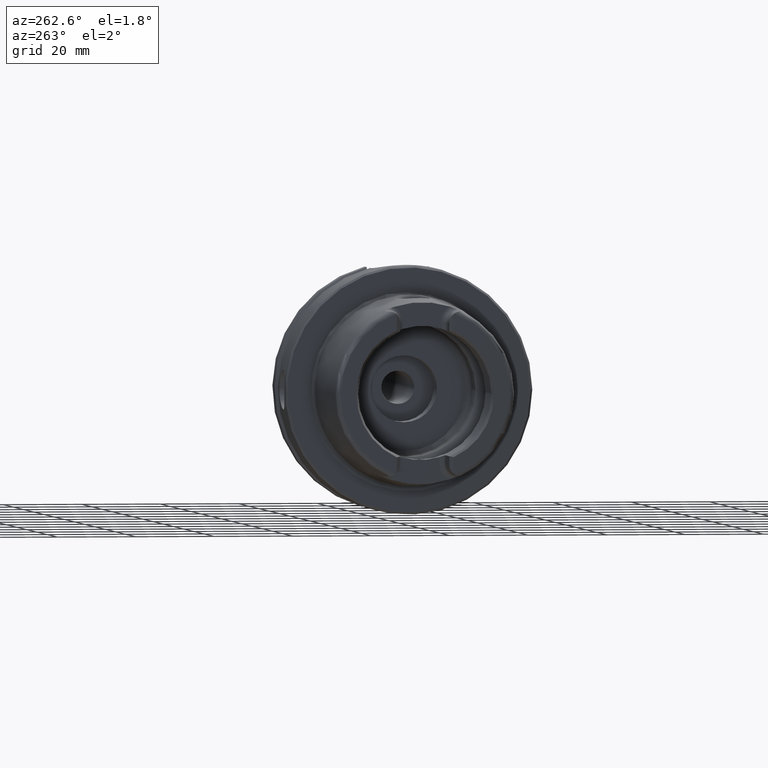
[diagram: clean part render]
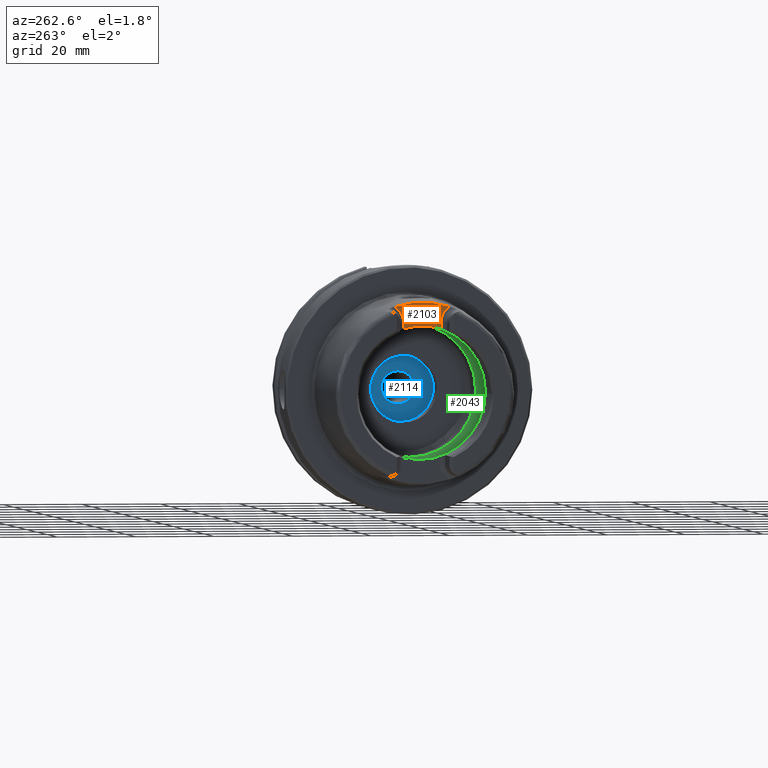
[diagram: same view with three faces highlighted in distinct colors, each labeled with its STEP entity id]
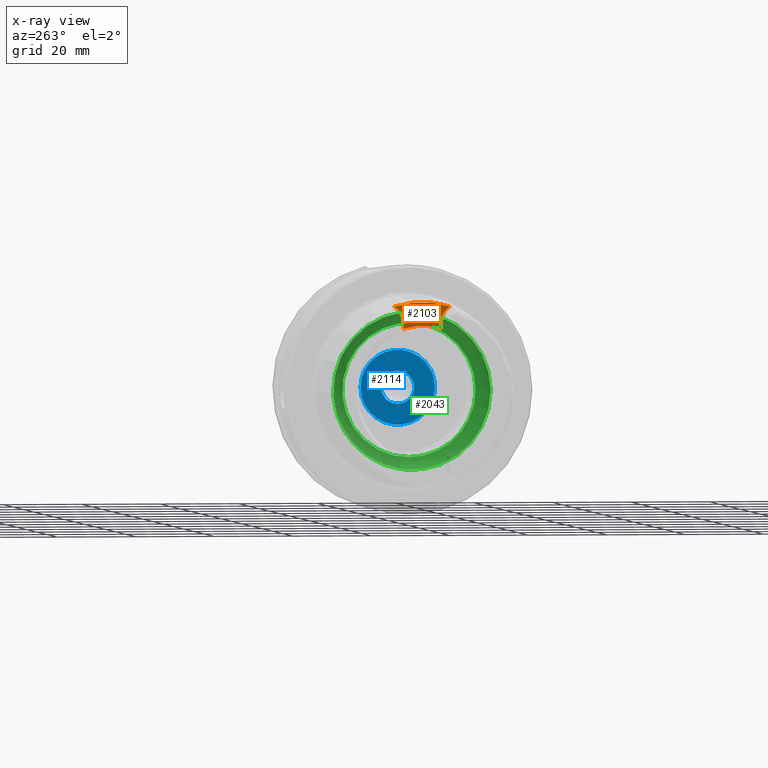
[diagram: x-ray of the same camera — body ghosted, the three highlighted faces saturated]
A machine part, auxiliary view with three faces highlighted in distinct colors.
The next image is the same camera in x-ray (body ghosted, the three faces saturated) — at least one of them is partly hidden behind the body in this view.
Their STEP definitions:

[orange] entity #2103 — the highlighted planar face has unit normal (-1, 0, 0).
#136=PLANE('',#2352);
#310=FACE_OUTER_BOUND('',#440,.T.);
#440=EDGE_LOOP('',(#1865,#1866,#1867,#1868,#1869,#1870));
#564=LINE('',#4351,#674);
#565=LINE('',#4380,#675);
#674=VECTOR('',#2858,10.);
#675=VECTOR('',#2871,10.);
#729=CIRCLE('',#2232,23.0180260521042);
#774=CIRCLE('',#2328,4.38);
#776=CIRCLE('',#2331,4.38);
#786=CIRCLE('',#2353,17.);
#904=VERTEX_POINT('',#3542);
#905=VERTEX_POINT('',#3557);
#998=VERTEX_POINT('',#4348);
#999=VERTEX_POINT('',#4350);
#1000=VERTEX_POINT('',#4365);
#1001=VERTEX_POINT('',#4369);
#1138=EDGE_CURVE('',#904,#905,#729,.T.);
#1285=EDGE_CURVE('',#998,#999,#564,.T.);
#1287=EDGE_CURVE('',#905,#998,#774,.T.);
#1289=EDGE_CURVE('',#1000,#904,#776,.T.);
#1291=EDGE_CURVE('',#1001,#1000,#565,.T.);
#1307=EDGE_CURVE('',#999,#1001,#786,.T.);
#1865=ORIENTED_EDGE('',*,*,#1287,.F.);
#1866=ORIENTED_EDGE('',*,*,#1138,.F.);
#1867=ORIENTED_EDGE('',*,*,#1289,.F.);
#1868=ORIENTED_EDGE('',*,*,#1291,.F.);
#1869=ORIENTED_EDGE('',*,*,#1307,.F.);
#1870=ORIENTED_EDGE('',*,*,#1285,.F.);
#2103=ADVANCED_FACE('',(#310),#136,.T.);
#2232=AXIS2_PLACEMENT_3D('',#3558,#2616,#2617);
#2328=AXIS2_PLACEMENT_3D('',#4363,#2861,#2862);
#2331=AXIS2_PLACEMENT_3D('',#4367,#2867,#2868);
#2352=AXIS2_PLACEMENT_3D('',#4428,#2914,#2915);
#2353=AXIS2_PLACEMENT_3D('',#4429,#2916,#2917);
#2616=DIRECTION('center_axis',(1.,0.,0.));
#2617=DIRECTION('ref_axis',(0.,1.,0.));
#2858=DIRECTION('',(0.,-1.58830189502884E-16,-1.));
#2861=DIRECTION('center_axis',(-1.,0.,0.));
#2862=DIRECTION('ref_axis',(0.,0.601141749549969,0.799142413433302));
#2867=DIRECTION('center_axis',(-1.,0.,0.));
#2868=DIRECTION('ref_axis',(0.,-0.601141749549969,0.799142413433301));
#2871=DIRECTION('',(0.,-1.58830189502884E-16,1.));
#2914=DIRECTION('center_axis',(-1.,0.,0.));
#2915=DIRECTION('ref_axis',(0.,0.,1.));
#2916=DIRECTION('center_axis',(-1.,0.,0.));
#2917=DIRECTION('ref_axis',(0.,1.,0.));
#3542=CARTESIAN_POINT('',(-26.,7.14127219004964,21.8822246319466));
#3557=CARTESIAN_POINT('',(-26.,-7.14127219004964,21.8822246319466));
#3558=CARTESIAN_POINT('Origin',(-26.,0.,0.));
#4348=CARTESIAN_POINT('',(-26.,-4.77,17.99));
#4350=CARTESIAN_POINT('',(-26.,-4.77,16.3170800083839));
#4351=CARTESIAN_POINT('',(-26.,-4.77,14.75));
#4363=CARTESIAN_POINT('Origin',(-26.,-9.15,17.99));
#4365=CARTESIAN_POINT('',(-26.,4.77,17.99));
#4367=CARTESIAN_POINT('Origin',(-26.,9.15,17.99));
#4369=CARTESIAN_POINT('',(-26.,4.77,16.3170800083839));
#4380=CARTESIAN_POINT('',(-26.,4.77,18.245));
#4428=CARTESIAN_POINT('Origin',(-26.,-2.22044604925031E-15,18.5));
#4429=CARTESIAN_POINT('Origin',(-26.,0.,0.));

[blue] entity #2114 — the highlighted planar face has unit normal (1, 0, 0).
#98=FACE_BOUND('',#452,.T.);
#140=PLANE('',#2378);
#321=FACE_OUTER_BOUND('',#451,.T.);
#451=EDGE_LOOP('',(#1931));
#452=EDGE_LOOP('',(#1932));
#712=CIRCLE('',#2191,4.2);
#801=CIRCLE('',#2379,9.5);
#850=VERTEX_POINT('',#3127);
#1013=VERTEX_POINT('',#4464);
#1069=EDGE_CURVE('',#850,#850,#712,.T.);
#1324=EDGE_CURVE('',#1013,#1013,#801,.T.);
#1931=ORIENTED_EDGE('',*,*,#1324,.T.);
#1932=ORIENTED_EDGE('',*,*,#1069,.T.);
#2114=ADVANCED_FACE('',(#321,#98),#140,.F.);
#2191=AXIS2_PLACEMENT_3D('',#3128,#2508,#2509);
#2378=AXIS2_PLACEMENT_3D('',#4463,#2968,#2969);
#2379=AXIS2_PLACEMENT_3D('',#4465,#2970,#2971);
#2508=DIRECTION('center_axis',(1.,0.,0.));
#2509=DIRECTION('ref_axis',(0.,0.,1.));
#2968=DIRECTION('center_axis',(1.,0.,0.));
#2969=DIRECTION('ref_axis',(0.,0.,-1.));
#2970=DIRECTION('center_axis',(-1.,0.,0.));
#2971=DIRECTION('ref_axis',(0.,0.,1.));
#3127=CARTESIAN_POINT('',(22.,-5.14351655641888E-16,-4.2));
#3128=CARTESIAN_POINT('Origin',(22.,0.,0.));
#4463=CARTESIAN_POINT('Origin',(22.,9.5,0.));
#4464=CARTESIAN_POINT('',(22.,-9.5,1.16341445918999E-15));
#4465=CARTESIAN_POINT('Origin',(22.,0.,0.));

[green] entity #2043 — the highlighted toroidal blend (fillet) surface has major radius 12 mm and minor (blend) radius 8 mm.
#49=B_SPLINE_CURVE_WITH_KNOTS('',3,(#3600,#3601,#3602,#3603,#3604,#3605,
#3606,#3607,#3608,#3609,#3610,#3611),.UNSPECIFIED.,.F.,.F.,(4,2,2,2,2,4),
(-0.560647090003115,-0.432465132423936,-0.371738630353782,-0.32053783623797,
-0.287500355516274,-0.280385270121909),.UNSPECIFIED.);
#51=B_SPLINE_CURVE_WITH_KNOTS('',3,(#3644,#3645,#3646,#3647,#3648,#3649,
#3650,#3651,#3652,#3653),.UNSPECIFIED.,.F.,.F.,(4,2,2,2,4),(-0.280385270121909,
-0.256917987419631,-0.21744735037608,-0.138661357565599,0.),
 .UNSPECIFIED.);
#54=B_SPLINE_CURVE_WITH_KNOTS('',3,(#3769,#3770,#3771,#3772,#3773,#3774,
#3775,#3776,#3777,#3778,#3779,#3780),.UNSPECIFIED.,.F.,.F.,(4,2,2,2,2,4),
(-0.560647090003256,-0.432465132424011,-0.371738630353825,-0.32053783623799,
-0.287500355516289,-0.280385270121924),.UNSPECIFIED.);
#56=B_SPLINE_CURVE_WITH_KNOTS('',3,(#3813,#3814,#3815,#3816,#3817,#3818,
#3819,#3820,#3821,#3822),.UNSPECIFIED.,.F.,.F.,(4,2,2,2,4),(-0.280385270121924,
-0.256917987419636,-0.217447350376074,-0.138661357565593,0.),
 .UNSPECIFIED.);
#147=TOROIDAL_SURFACE('',#2242,12.,8.);
#250=FACE_OUTER_BOUND('',#379,.T.);
#379=EDGE_LOOP('',(#1545,#1546,#1547,#1548,#1549,#1550,#1551,#1552,#1553,
#1554,#1555));
#731=CIRCLE('',#2237,20.);
#734=CIRCLE('',#2240,20.);
#735=CIRCLE('',#2241,20.);
#736=CIRCLE('',#2243,17.);
#737=CIRCLE('',#2244,17.);
#738=CIRCLE('',#2245,8.);
#907=VERTEX_POINT('',#3597);
#908=VERTEX_POINT('',#3599);
#909=VERTEX_POINT('',#3612);
#912=VERTEX_POINT('',#3767);
#913=VERTEX_POINT('',#3768);
#914=VERTEX_POINT('',#3781);
#915=VERTEX_POINT('',#3825);
#918=VERTEX_POINT('',#3835);
#919=VERTEX_POINT('',#3836);
#1143=EDGE_CURVE('',#908,#907,#49,.T.);
#1145=EDGE_CURVE('',#907,#909,#51,.T.);
#1149=EDGE_CURVE('',#912,#913,#54,.T.);
#1151=EDGE_CURVE('',#913,#914,#56,.T.);
#1153=EDGE_CURVE('',#915,#912,#731,.T.);
#1157=EDGE_CURVE('',#909,#915,#734,.T.);
#1158=EDGE_CURVE('',#914,#908,#735,.T.);
#1159=EDGE_CURVE('',#918,#919,#736,.T.);
#1160=EDGE_CURVE('',#919,#918,#737,.T.);
#1161=EDGE_CURVE('',#919,#907,#738,.T.);
#1545=ORIENTED_EDGE('',*,*,#1159,.F.);
#1546=ORIENTED_EDGE('',*,*,#1160,.F.);
#1547=ORIENTED_EDGE('',*,*,#1161,.T.);
#1548=ORIENTED_EDGE('',*,*,#1145,.T.);
#1549=ORIENTED_EDGE('',*,*,#1157,.T.);
#1550=ORIENTED_EDGE('',*,*,#1153,.T.);
#1551=ORIENTED_EDGE('',*,*,#1149,.T.);
#1552=ORIENTED_EDGE('',*,*,#1151,.T.);
#1553=ORIENTED_EDGE('',*,*,#1158,.T.);
#1554=ORIENTED_EDGE('',*,*,#1143,.T.);
#1555=ORIENTED_EDGE('',*,*,#1161,.F.);
#2043=ADVANCED_FACE('',(#250),#147,.F.);
#2237=AXIS2_PLACEMENT_3D('',#3826,#2629,#2630);
#2240=AXIS2_PLACEMENT_3D('',#3832,#2636,#2637);
#2241=AXIS2_PLACEMENT_3D('',#3833,#2638,#2639);
#2242=AXIS2_PLACEMENT_3D('',#3834,#2640,#2641);
#2243=AXIS2_PLACEMENT_3D('',#3837,#2642,#2643);
#2244=AXIS2_PLACEMENT_3D('',#3838,#2644,#2645);
#2245=AXIS2_PLACEMENT_3D('',#3839,#2646,#2647);
#2629=DIRECTION('center_axis',(-1.,0.,0.));
#2630=DIRECTION('ref_axis',(0.,0.,1.));
#2636=DIRECTION('center_axis',(-1.,0.,0.));
#2637=DIRECTION('ref_axis',(0.,0.,1.));
#2638=DIRECTION('center_axis',(-1.,0.,0.));
#2639=DIRECTION('ref_axis',(0.,0.,1.));
#2640=DIRECTION('center_axis',(-1.,0.,0.));
#2641=DIRECTION('ref_axis',(0.,0.,1.));
#2642=DIRECTION('center_axis',(-1.,0.,0.));
#2643=DIRECTION('ref_axis',(0.,0.,1.));
#2644=DIRECTION('center_axis',(-1.,0.,0.));
#2645=DIRECTION('ref_axis',(0.,0.,1.));
#2646=DIRECTION('center_axis',(0.,1.,-1.22464679914735E-16));
#2647=DIRECTION('ref_axis',(0.,-1.22464679914735E-16,-1.));
#3597=CARTESIAN_POINT('',(-5.25,3.07683831259085E-16,-19.9378825251564));
#3599=CARTESIAN_POINT('',(-6.2449979983984,2.54410376580264,-19.8375284758165));
#3600=CARTESIAN_POINT('Ctrl Pts',(-6.2449979983984,2.54410376580263,-19.8375284758165));
#3601=CARTESIAN_POINT('Ctrl Pts',(-5.9563832733696,2.23156378381208,-19.877610794847));
#3602=CARTESIAN_POINT('Ctrl Pts',(-5.72238184052007,1.87139505615745,-19.9007586679726));
#3603=CARTESIAN_POINT('Ctrl Pts',(-5.47415257397377,1.29299577523533,-19.9221291461079));
#3604=CARTESIAN_POINT('Ctrl Pts',(-5.40951125063364,1.10084807786171,-19.9269865934584));
#3605=CARTESIAN_POINT('Ctrl Pts',(-5.31953029252225,0.738763665580492,-19.9333991732415));
#3606=CARTESIAN_POINT('Ctrl Pts',(-5.28971989928313,0.57048989328573,-19.9353426103026));
#3607=CARTESIAN_POINT('Ctrl Pts',(-5.25970604483208,0.291260075331645,-19.9372753146995));
#3608=CARTESIAN_POINT('Ctrl Pts',(-5.25276504295341,0.181279004510485,-19.9377089305339));
#3609=CARTESIAN_POINT('Ctrl Pts',(-5.25022501552319,0.0474369436209427,
-19.9378684144199));
#3610=CARTESIAN_POINT('Ctrl Pts',(-5.25,0.0237178817918345,-19.9378825251564));
#3611=CARTESIAN_POINT('Ctrl Pts',(-5.25,1.73633857888389E-16,-19.9378825251564));
#3612=CARTESIAN_POINT('',(-6.2449979983984,-2.54410376580264,-19.8375284758165));
#3644=CARTESIAN_POINT('Ctrl Pts',(-5.25,1.73633857888389E-16,-19.9378825251564));
#3645=CARTESIAN_POINT('Ctrl Pts',(-5.25,-0.0782273446147222,-19.9378825251564));
#3646=CARTESIAN_POINT('Ctrl Pts',(-5.25244785081342,-0.15644185230388,-19.9377296492436));
#3647=CARTESIAN_POINT('Ctrl Pts',(-5.26557067654327,-0.365860616871457,
-19.9368989370107));
#3648=CARTESIAN_POINT('Ctrl Pts',(-5.2807081654794,-0.496671474530444,-19.9359382432917));
#3649=CARTESIAN_POINT('Ctrl Pts',(-5.34656166936447,-0.885366242555149,
-19.9315392091305));
#3650=CARTESIAN_POINT('Ctrl Pts',(-5.41752174824152,-1.13897710923821,-19.9266508951874));
#3651=CARTESIAN_POINT('Ctrl Pts',(-5.68473945553282,-1.81246400136134,-19.9044561094296));
#3652=CARTESIAN_POINT('Ctrl Pts',(-5.93280828188796,-2.20603449935731,-19.880884849314));
#3653=CARTESIAN_POINT('Ctrl Pts',(-6.2449979983984,-2.54410376580263,-19.8375284758165));
#3767=CARTESIAN_POINT('',(-6.2449979983984,-2.54410376580264,19.8375284758165));
#3768=CARTESIAN_POINT('',(-5.25,4.81156178856766E-16,19.9378825251564));
#3769=CARTESIAN_POINT('Ctrl Pts',(-6.2449979983984,-2.54410376580264,19.8375284758165));
#3770=CARTESIAN_POINT('Ctrl Pts',(-5.9563832733696,-2.23156378381209,19.877610794847));
#3771=CARTESIAN_POINT('Ctrl Pts',(-5.72238184052007,-1.87139505615746,19.9007586679726));
#3772=CARTESIAN_POINT('Ctrl Pts',(-5.47415257397376,-1.29299577523533,19.9221291461079));
#3773=CARTESIAN_POINT('Ctrl Pts',(-5.40951125063363,-1.10084807786172,19.9269865934584));
#3774=CARTESIAN_POINT('Ctrl Pts',(-5.31953029252225,-0.738763665580501,
19.9333991732415));
#3775=CARTESIAN_POINT('Ctrl Pts',(-5.28971989928313,-0.570489893285745,
19.9353426103026));
#3776=CARTESIAN_POINT('Ctrl Pts',(-5.25970604483207,-0.291260075331669,
19.9372753146995));
#3777=CARTESIAN_POINT('Ctrl Pts',(-5.2527650429534,-0.181279004510531,19.9377089305339));
#3778=CARTESIAN_POINT('Ctrl Pts',(-5.25022501552319,-0.0474369436209401,
19.9378684144199));
#3779=CARTESIAN_POINT('Ctrl Pts',(-5.25,-0.0237178817918311,19.9378825251564));
#3780=CARTESIAN_POINT('Ctrl Pts',(-5.25,5.15920899939407E-16,19.9378825251564));
#3781=CARTESIAN_POINT('',(-6.2449979983984,2.54410376580264,19.8375284758165));
#3813=CARTESIAN_POINT('Ctrl Pts',(-5.25,5.15920899939407E-16,19.9378825251564));
#3814=CARTESIAN_POINT('Ctrl Pts',(-5.25,0.0782273446147462,19.9378825251564));
#3815=CARTESIAN_POINT('Ctrl Pts',(-5.25244785081342,0.156441852303891,19.9377296492436));
#3816=CARTESIAN_POINT('Ctrl Pts',(-5.26557067654326,0.36586061687142,19.9368989370107));
#3817=CARTESIAN_POINT('Ctrl Pts',(-5.28070816547939,0.496671474530425,19.9359382432917));
#3818=CARTESIAN_POINT('Ctrl Pts',(-5.34656166936446,0.885366242555101,19.9315392091305));
#3819=CARTESIAN_POINT('Ctrl Pts',(-5.41752174824151,1.13897710923819,19.9266508951874));
#3820=CARTESIAN_POINT('Ctrl Pts',(-5.68473945553283,1.81246400136138,19.9044561094296));
#3821=CARTESIAN_POINT('Ctrl Pts',(-5.93280828188797,2.20603449935733,19.880884849314));
#3822=CARTESIAN_POINT('Ctrl Pts',(-6.2449979983984,2.54410376580264,19.8375284758165));
#3825=CARTESIAN_POINT('',(-6.2449979983984,-20.,2.44929359829471E-15));
#3826=CARTESIAN_POINT('Origin',(-6.2449979983984,0.,0.));
#3832=CARTESIAN_POINT('Origin',(-6.2449979983984,0.,0.));
#3833=CARTESIAN_POINT('Origin',(-6.2449979983984,0.,0.));
#3834=CARTESIAN_POINT('Origin',(-6.2449979983984,0.,0.));
#3835=CARTESIAN_POINT('',(0.,-17.,2.0818995585505E-15));
#3836=CARTESIAN_POINT('',(0.,-2.0818995585505E-15,-17.));
#3837=CARTESIAN_POINT('Origin',(0.,0.,0.));
#3838=CARTESIAN_POINT('Origin',(0.,0.,0.));
#3839=CARTESIAN_POINT('Origin',(-6.2449979983984,-1.46957615897682E-15,
-12.));